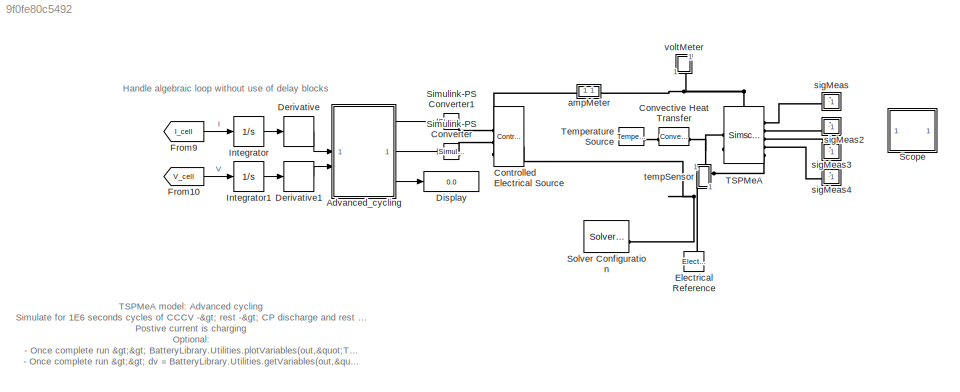
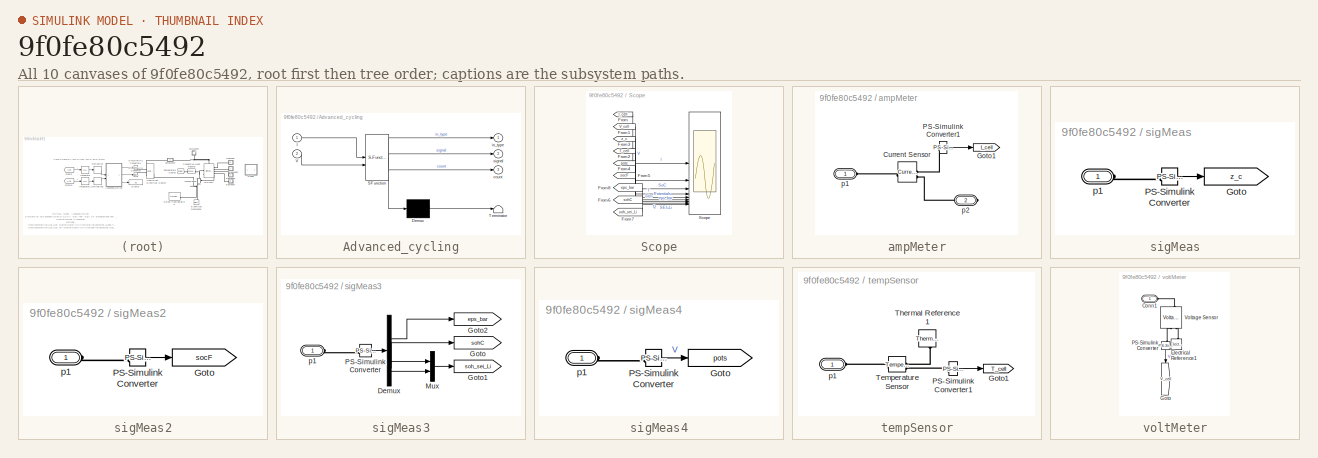
[diagram: thumbnail index - all 10 canvases of the model, root first then tree order]
MODEL slx_9f0fe80c5492
KIND model
CONFIG AbsTol = auto
CONFIG EnableMultiTasking = off
CONFIG FixedStep = 1
CONFIG MaxStep = 5
CONFIG MinStep = auto
CONFIG RelTol = auto
CONFIG SampleTimeConstraint = Unconstrained
CONFIG SolverName = daessc
CONFIG StartTime = 0.0
CONFIG StopTime = 1E6
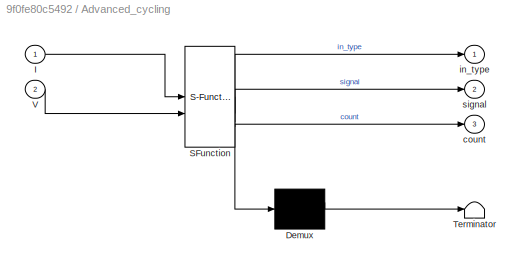
BLOCK [SubSystem] Advanced_cycling
  ErrorFcn = Stateflow.Translate.translate
  PermitHierarchicalResolution = ExplicitOnly
  SFBlockType = Chart
  TreatAsAtomicUnit = on
BLOCK [Demux] Advanced_cycling/ Demux 
  Outputs = 1
BLOCK [S-Function] Advanced_cycling/ SFunction 
  EnableBusSupport = on
  FunctionName = sf_sfun
  PortCounts = [2 4]
  SFcnIsStateOwnerBlock = off
  SFunctionDeploymentMode = off
  Tag = Stateflow S-Function 3
BLOCK [Terminator] Advanced_cycling/ Terminator 
BLOCK [Inport] Advanced_cycling/I
BLOCK [Inport] Advanced_cycling/V
  Port = 2
BLOCK [Outport] Advanced_cycling/count
  Port = 3
BLOCK [Outport] Advanced_cycling/in_type
BLOCK [Outport] Advanced_cycling/signal
  Port = 2
BLOCK [Reference] Controlled Electrical Source  REF=BatteryLibrary_lib/Utilities/Controlled
Electrical Source
  SourceBlock = BatteryLibrary_lib/Utilities/Controlled\nElectrical Source
  SourceType = Controlled\nElectrical Source
BLOCK [Reference] Convective Heat Transfer  REF=fl_lib/Thermal/Thermal Elements/Convective Heat
Transfer
  NameLocation = top
  SourceBlock = fl_lib/Thermal/Thermal Elements/Convective Heat\nTransfer
  SourceType = Convective Heat\nTransfer
BLOCK [Derivative] Derivative
BLOCK [Derivative] Derivative1
BLOCK [Display] Display
  Decimation = 1
BLOCK [Reference] Electrical Reference  REF=fl_lib/Electrical/Electrical Elements/Electrical Reference
  NameLocation = right
  SourceBlock = fl_lib/Electrical/Electrical Elements/Electrical Reference
  SourceType = Electrical Reference
BLOCK [From] From10
  GotoTag = V_cell
  TagVisibility = global
BLOCK [From] From9
  GotoTag = I_cell
  TagVisibility = global
BLOCK [Integrator] Integrator
BLOCK [Integrator] Integrator1
  InitialCondition = 4.1
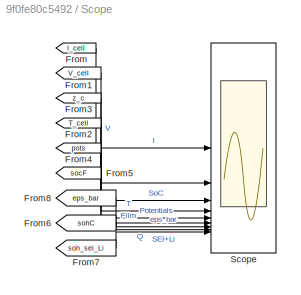
BLOCK [SubSystem] Scope
BLOCK [From] Scope/From
  GotoTag = I_cell
  TagVisibility = global
BLOCK [From] Scope/From1
  GotoTag = V_cell
  TagVisibility = global
BLOCK [From] Scope/From2
  GotoTag = T_cell
  TagVisibility = global
BLOCK [From] Scope/From3
  GotoTag = z_c
  TagVisibility = global
BLOCK [From] Scope/From4
  GotoTag = pots
  TagVisibility = global
BLOCK [From] Scope/From5
  GotoTag = socF
  TagVisibility = global
BLOCK [From] Scope/From6
  GotoTag = sohC
  TagVisibility = global
BLOCK [From] Scope/From7
  GotoTag = soh_sei_Li
  TagVisibility = global
BLOCK [From] Scope/From8
  GotoTag = eps_bar
  TagVisibility = global
BLOCK [Scope] Scope/Scope
  Floating = off
  NumInputPorts = 9
  ScopeSpecificationString = Simulink.scopes.TimeScopeBlockCfg('CurrentConfiguration', extmgr.ConfigurationSet(extmgr.Configuration('Core','General UI',true,'FigureColor',[0 0 0]),extmgr.Configuration('Core','Source UI',true),extmgr.Configuration('Sources','WiredSimulink',true),extmgr.Configuration('Visuals','Time Domain',true,'SerializedDisplays',{struct('MinYLimReal','-2.87921','MaxYLimReal','5.87547','YLabelReal','','MinYL...<+6204ch>
BLOCK [Reference] Simulink-PS Converter  REF=nesl_utility/Simulink-PS
Converter
  SourceBlock = nesl_utility/Simulink-PS\nConverter
  SourceType = Simulink-PS\nConverter
BLOCK [Reference] Simulink-PS Converter1  REF=nesl_utility/Simulink-PS
Converter
  SourceBlock = nesl_utility/Simulink-PS\nConverter
  SourceType = Simulink-PS\nConverter
BLOCK [Reference] Solver Configuration  REF=nesl_utility/Solver
Configuration
  SourceBlock = nesl_utility/Solver\nConfiguration
  SourceType = Solver\nConfiguration
BLOCK [SimscapeComponentBlock] TSPMeA
  Area_p = 1027
  Area_p_conf = compiletime
  Area_p_unit = cm^2
  ClassName = TSPMeA
  Cn = 4.9
  Cn_conf = compiletime
  Cn_unit = A*hr
  ComponentPath = BatteryLibrary.Models.TSPMeA
  ComponentVariantNames = ["TSPMeA"]
  ComponentVariants = ["BatteryLibrary.Models.TSPMeA"]
  CopyFcn = simscape.engine.sli.internal.componentblockcallback(gcbh,'COPY')
  Cp = 110
  Cp_conf = compiletime
  Cp_unit = J/K
  DnRef = 3.3E-14
  DnRef_conf = compiletime
  DnRef_unit = m^2/s
  DpRef = 4E-15
  DpRef_conf = compiletime
  DpRef_unit = m^2/s
  DseiRef = 2E-21
  DseiRef_conf = compiletime
  DseiRef_unit = m^2/s
  Ea_De = 8
  Ea_De_conf = compiletime
  Ea_De_unit = kJ/mol
  Ea_Dn = 8
  Ea_Dn_conf = compiletime
  Ea_Dn_unit = kJ/mol
  Ea_Dp = 8
  Ea_Dp_conf = compiletime
  Ea_Dp_unit = kJ/mol
  Ea_Dsei = 10
  Ea_Dsei_conf = compiletime
  Ea_Dsei_unit = kJ/mol
  Ea_kLi = 2
  Ea_kLi_conf = compiletime
  Ea_kLi_unit = kJ/mol
  Ea_kn = 10
  Ea_kn_conf = compiletime
  Ea_kn_unit = kJ/mol
  Ea_kp = 10
  Ea_kp_conf = compiletime
  Ea_kp_unit = kJ/mol
  Ea_ksei = 50
  Ea_ksei_conf = compiletime
  Ea_ksei_unit = kJ/mol
  Ea_sigmae = 3
  Ea_sigmae_conf = compiletime
  Ea_sigmae_unit = kJ/mol
  Ea_sigman = 3
  Ea_sigman_conf = compiletime
  Ea_sigman_unit = kJ/mol
  Ea_sigmap = 3
  Ea_sigmap_conf = compiletime
  Ea_sigmap_unit = kJ/mol
  Ea_sigmasei = 10
  Ea_sigmasei_conf = compiletime
  Ea_sigmasei_unit = kJ/mol
  InternalSimscapePortConfiguration = {"Bottom":[{"id":"n","label":"-","type":"foundation.electrical.electrical"}],"Left":[{"id":"Hi","label":"H","type":"foundation.thermal.thermal"}],"Right":[{"id":"z","label":"SoC","type":"output"},{"id":"Lf_bar","label":"sohF","type":"output"},{"id":"SoH_Cn","label":"sohC","type":"output"},{"id":"pots","label":"Pots","type":"output"}],"Top":[{"id":"p","label":"+","type":"foundation.electrical.elect...<+9ch>
  Lf0 = 5E-3
  Lf0_conf = compiletime
  Lf0_unit = um
  Ln = 85.2
  Ln_conf = compiletime
  Ln_unit = um
  Lp = 75.6
  Lp_conf = compiletime
  Lp_unit = um
  Ls = 12
  Ls_conf = compiletime
  Ls_unit = um
  MLi = 6.94E-3
  MLi_conf = compiletime
  MLi_unit = kg/mol
  MaskType = TSPMeA
  Msei = 0.162
  Msei_conf = compiletime
  Msei_unit = kg/mol
  PreCopyFcn = simscape.engine.sli.internal.componentblockcallback(gcbh,'PRECOPY')
  PreDeleteFcn = simscape.engine.sli.internal.componentblockcallback(gcbh,'PREDELETE')
  Rn = 5.86
  Rn_conf = compiletime
  Rn_unit = um
  Rp = 5.22
  Rp_conf = compiletime
  Rp_unit = um
  SchemaVersion = 1
  SourceFile = BatteryLibrary.Models.TSPMeA
  T0 = 25
  T0_conf = compiletime
  T0_unit = degC
  Tref = 298
  Tref_conf = compiletime
  Tref_unit = K
  ULi = 0.4
  ULi_conf = compiletime
  ULi_unit = V
  Usei = 0.4
  Usei_conf = compiletime
  Usei_unit = V
  an = 3.84E5
  an_conf = compiletime
  an_unit = 1/m
  ap = 3.82E5
  ap_conf = compiletime
  ap_unit = 1/m
  ce0 = 1000
  ce0_conf = compiletime
  ce0_unit = mol/m^3
  cn_max = 33133
  cn_max_conf = compiletime
  cn_max_unit = mol/m^3
  cp_max = 63104
  cp_max_conf = compiletime
  cp_max_unit = mol/m^3
  csei0 = 4541
  csei0_conf = compiletime
  csei0_unit = mol/m^3
  eps_n0 = 0.3
  eps_n0_conf = compiletime
  eps_n0_unit = 1
  eps_p = 0.335
  eps_p_conf = compiletime
  eps_p_unit = 1
  eps_s = 0.47
  eps_s_conf = compiletime
  eps_s_unit = 1
  kLiRef = 1E-15
  kLiRef_conf = compiletime
  kLiRef_unit = m/s
  knRef = 6.48E-7
  knRef_conf = compiletime
  knRef_unit = A*m^(5/2)/mol^(3/2)
  kpRef = 3.42E-6
  kpRef_conf = compiletime
  kpRef_unit = A*m^(5/2)/mol^(3/2)
  kseiRef = 1E-11
  kseiRef_conf = compiletime
  kseiRef_unit = m/s
  pho_Li = 534
  pho_Li_conf = compiletime
  pho_Li_unit = kg/m^3
  pho_sei = 1690
  pho_sei_conf = compiletime
  pho_sei_unit = kg/m^3
  sigma_eRef = 1.2
  sigma_eRef_conf = compiletime
  sigma_eRef_unit = S/m
  sigma_nRef = 215
  sigma_nRef_conf = compiletime
  sigma_nRef_unit = S/m
  sigma_pRef = 0.18
  sigma_pRef_conf = compiletime
  sigma_pRef_unit = S/m
  sigma_seiRef = 5E-6
  sigma_seiRef_conf = compiletime
  sigma_seiRef_unit = S/m
  sn_max = 0.9014
  sn_max_conf = compiletime
  sn_max_unit = 1
  sn_min = 0.0279
  sn_min_conf = compiletime
  sn_min_unit = 1
  sp_max = 0.9072
  sp_max_conf = compiletime
  sp_max_unit = 1
  sp_min = 0.2567
  sp_min_conf = compiletime
  sp_min_unit = 1
  tr = 0.2594
  tr_conf = compiletime
  tr_unit = 1
  z0 = 0.5
  z0_conf = compiletime
  z0_unit = 1
BLOCK [Reference] Temperature Source  REF=fl_lib/Thermal/Thermal Sources/Temperature Source
  SourceBlock = fl_lib/Thermal/Thermal Sources/Temperature Source
  SourceType = Temperature Source
BLOCK [SubSystem] ampMeter
  ShowPortLabels = none
BLOCK [Reference] ampMeter/Current Sensor  REF=fl_lib/Electrical/Electrical Sensors/Current Sensor
  SourceBlock = fl_lib/Electrical/Electrical Sensors/Current Sensor
  SourceType = Current Sensor
BLOCK [Goto] ampMeter/Goto1
  GotoTag = I_cell
  TagVisibility = global
BLOCK [Reference] ampMeter/PS-Simulink Converter1  REF=nesl_utility/PS-Simulink
Converter
  SourceBlock = nesl_utility/PS-Simulink\nConverter
  SourceType = PS-Simulink\nConverter
BLOCK [PMIOPort] ampMeter/p1
  Side = Left
BLOCK [PMIOPort] ampMeter/p2
  Port = 2
  Side = Right
BLOCK [SubSystem] sigMeas
  ShowPortLabels = none
BLOCK [Goto] sigMeas/Goto
  GotoTag = z_c
  TagVisibility = global
BLOCK [Reference] sigMeas/PS-Simulink Converter  REF=nesl_utility/PS-Simulink
Converter
  SourceBlock = nesl_utility/PS-Simulink\nConverter
  SourceType = PS-Simulink\nConverter
BLOCK [PMIOPort] sigMeas/p1
  Side = Left
BLOCK [SubSystem] sigMeas2
  ShowPortLabels = none
BLOCK [Goto] sigMeas2/Goto
  GotoTag = socF
  TagVisibility = global
BLOCK [Reference] sigMeas2/PS-Simulink Converter  REF=nesl_utility/PS-Simulink
Converter
  SourceBlock = nesl_utility/PS-Simulink\nConverter
  SourceType = PS-Simulink\nConverter
BLOCK [PMIOPort] sigMeas2/p1
  Side = Left
BLOCK [SubSystem] sigMeas3
  ShowPortLabels = none
BLOCK [Demux] sigMeas3/Demux
BLOCK [Goto] sigMeas3/Goto
  GotoTag = sohC
  TagVisibility = global
BLOCK [Goto] sigMeas3/Goto1
  GotoTag = soh_sei_Li
  TagVisibility = global
BLOCK [Goto] sigMeas3/Goto2
  GotoTag = eps_bar
  TagVisibility = global
BLOCK [Mux] sigMeas3/Mux
  DisplayOption = bar
  Inputs = 2
BLOCK [Reference] sigMeas3/PS-Simulink Converter  REF=nesl_utility/PS-Simulink
Converter
  SourceBlock = nesl_utility/PS-Simulink\nConverter
  SourceType = PS-Simulink\nConverter
BLOCK [PMIOPort] sigMeas3/p1
  Side = Left
BLOCK [SubSystem] sigMeas4
  ShowPortLabels = none
BLOCK [Goto] sigMeas4/Goto
  GotoTag = pots
  TagVisibility = global
BLOCK [Reference] sigMeas4/PS-Simulink Converter  REF=nesl_utility/PS-Simulink
Converter
  SourceBlock = nesl_utility/PS-Simulink\nConverter
  SourceType = PS-Simulink\nConverter
BLOCK [PMIOPort] sigMeas4/p1
  Side = Left
BLOCK [SubSystem] tempSensor
  NameLocation = left
  ShowPortLabels = none
BLOCK [Goto] tempSensor/Goto1
  GotoTag = T_cell
  TagVisibility = global
BLOCK [Reference] tempSensor/PS-Simulink Converter1  REF=nesl_utility/PS-Simulink
Converter
  SourceBlock = nesl_utility/PS-Simulink\nConverter
  SourceType = PS-Simulink\nConverter
BLOCK [Reference] tempSensor/Temperature Sensor  REF=fl_lib/Thermal/Thermal Sensors/Temperature Sensor
  SourceBlock = fl_lib/Thermal/Thermal Sensors/Temperature Sensor
  SourceType = Temperature Sensor
BLOCK [Reference] tempSensor/Thermal Reference1  REF=fl_lib/Thermal/Thermal Elements/Thermal Reference
  NameLocation = left
  SourceBlock = fl_lib/Thermal/Thermal Elements/Thermal Reference
  SourceType = Thermal Reference
BLOCK [PMIOPort] tempSensor/p1
  Side = Left
BLOCK [SubSystem] voltMeter
  NameLocation = right
  ShowPortLabels = none
BLOCK [PMIOPort] voltMeter/Conn1
  Side = Left
BLOCK [Reference] voltMeter/Electrical Reference1  REF=fl_lib/Electrical/Electrical Elements/Electrical Reference
  NameLocation = right
  SourceBlock = fl_lib/Electrical/Electrical Elements/Electrical Reference
  SourceType = Electrical Reference
BLOCK [Goto] voltMeter/Goto
  GotoTag = V_cell
  NameLocation = left
  TagVisibility = global
BLOCK [Reference] voltMeter/PS-Simulink Converter  REF=nesl_utility/PS-Simulink
Converter
  NameLocation = left
  SourceBlock = nesl_utility/PS-Simulink\nConverter
  SourceType = PS-Simulink\nConverter
BLOCK [Reference] voltMeter/Voltage Sensor  REF=fl_lib/Electrical/Electrical Sensors/Voltage Sensor
  NameLocation = right
  SourceBlock = fl_lib/Electrical/Electrical Sensors/Voltage Sensor
  SourceType = Voltage Sensor
ANNOTATION (root): TSPMeA model: Advanced cycling Simulate for 1E6 seconds cycles of CCCV -> rest -> CP discharge and rest at 25 degC Postive current is charging Optional: - Once complete run >> BatteryLibrary.Utilities.plotVariables(out,"TSPMeA") on the command line or, even better, on a live script to see summary results - Once complete run >> dv = BatteryLibrary.Utilities.getVariables(out,"TSPMeA") on the command...<+47ch>
ANNOTATION (root): Handle algebraic loop without use of delay blocks
LINE Advanced_cycling:1 -> Simulink-PS Converter1:1
LINE Advanced_cycling:2 -> Simulink-PS Converter:1
LINE Advanced_cycling:3 -> Display:1
LINE Derivative1:1 -> Advanced_cycling:2
LINE Derivative:1 -> Advanced_cycling:1
LINE From10:1 -> Integrator1:1
LINE From9:1 -> Integrator:1
LINE Integrator1:1 -> Derivative1:1
LINE Integrator:1 -> Derivative:1
LINE Scope/From1:1 -> Scope/Scope:2
LINE Scope/From2:1 -> Scope/Scope:4
LINE Scope/From3:1 -> Scope/Scope:3
LINE Scope/From4:1 -> Scope/Scope:5
LINE Scope/From5:1 -> Scope/Scope:6
LINE Scope/From6:1 -> Scope/Scope:8
LINE Scope/From7:1 -> Scope/Scope:9
LINE Scope/From8:1 -> Scope/Scope:7
LINE Scope/From:1 -> Scope/Scope:1
LINE ampMeter/PS-Simulink Converter1:1 -> ampMeter/Goto1:1
LINE sigMeas/PS-Simulink Converter:1 -> sigMeas/Goto:1
LINE sigMeas2/PS-Simulink Converter:1 -> sigMeas2/Goto:1
LINE sigMeas3/Demux:1 -> sigMeas3/Goto2:1
LINE sigMeas3/Demux:2 -> sigMeas3/Goto:1
LINE sigMeas3/Demux:3 -> sigMeas3/Mux:1
LINE sigMeas3/Demux:4 -> sigMeas3/Mux:2
LINE sigMeas3/Mux:1 -> sigMeas3/Goto1:1
LINE sigMeas3/PS-Simulink Converter:1 -> sigMeas3/Demux:1
LINE sigMeas4/PS-Simulink Converter:1 -> sigMeas4/Goto:1
LINE tempSensor/PS-Simulink Converter1:1 -> tempSensor/Goto1:1
LINE voltMeter/PS-Simulink Converter:1 -> voltMeter/Goto:1
PLINE Controlled Electrical Source:LConn1 -- Simulink-PS Converter1:RConn1
PLINE Controlled Electrical Source:LConn2 -- Simulink-PS Converter:RConn1
PLINE Controlled Electrical Source:LConn3 -- ampMeter:LConn1
PNET net1: Controlled Electrical Source:RConn1 -- Electrical Reference:LConn1 -- Solver Configuration:RConn1 -- TSPMeA:RConn5
PNET net2: Convective Heat Transfer:LConn1 -- TSPMeA:LConn1 -- tempSensor:LConn1
PLINE Convective Heat Transfer:RConn1 -- Temperature Source:LConn1
PNET net3: TSPMeA:LConn2 -- ampMeter:RConn1 -- voltMeter:LConn1
PLINE TSPMeA:RConn1 -- sigMeas:LConn1
PLINE TSPMeA:RConn2 -- sigMeas2:LConn1
PLINE TSPMeA:RConn3 -- sigMeas3:LConn1
PLINE TSPMeA:RConn4 -- sigMeas4:LConn1
PLINE ampMeter/Current Sensor:LConn1 -- ampMeter/p1:RConn1
PLINE ampMeter/Current Sensor:RConn1 -- ampMeter/PS-Simulink Converter1:LConn1
PLINE ampMeter/Current Sensor:RConn2 -- ampMeter/p2:RConn1
PLINE sigMeas/PS-Simulink Converter:LConn1 -- sigMeas/p1:RConn1
PLINE sigMeas2/PS-Simulink Converter:LConn1 -- sigMeas2/p1:RConn1
PLINE sigMeas3/PS-Simulink Converter:LConn1 -- sigMeas3/p1:RConn1
PLINE sigMeas4/PS-Simulink Converter:LConn1 -- sigMeas4/p1:RConn1
PLINE tempSensor/PS-Simulink Converter1:LConn1 -- tempSensor/Temperature Sensor:RConn2
PLINE tempSensor/Temperature Sensor:LConn1 -- tempSensor/p1:RConn1
PLINE tempSensor/Temperature Sensor:RConn1 -- tempSensor/Thermal Reference1:LConn1
PLINE voltMeter/Conn1:RConn1 -- voltMeter/Voltage Sensor:LConn1
PLINE voltMeter/Electrical Reference1:LConn1 -- voltMeter/Voltage Sensor:RConn2
PLINE voltMeter/PS-Simulink Converter:LConn1 -- voltMeter/Voltage Sensor:RConn1
note: PNET lines group multi-terminal physical nets as a canonical sorted terminal list (undirected conserving connections); 2-terminal nets keep the pairwise PLINE form
CHART Advanced_cycling states=7 transitions=8
  STATE_LABEL 'Power_Cycling_Profile'
  STATE_LABEL 'Rest\nin_type = 0;\nsignal = 0;\n'
  STATE_LABEL 'Discharge_CP\nin_type = 2;\nsignal = -5;\n'
  STATE_LABEL 'Rest1\nin_type = 0;\nsignal = 0;\n'
  STATE_LABEL 'Charge_CC\nin_type = 0;\nsignal = 5'
  STATE_LABEL 'Charge_CV\nin_type = 1;\nsignal = 4.2'
  STATE_LABEL 'Rest2\nin_type = 0;\nsignal = 0;\n'
  STATE_LABEL '{count=0}'
  STATE_LABEL '[after(10,sec)]'
  STATE_LABEL '[after(3600,sec)]{count = count + 1}'
  STATE_LABEL '[V<=2.5]'
  STATE_LABEL '[after(3600,sec)]'
  STATE_LABEL '[V>=4.2]'
  STATE_LABEL '[I<=5/10]'
  STATE_LABEL 'Rest\nin_type = 0;\nsignal = 0;\n'
  STATE_LABEL 'Discharge_CP\nin_type = 2;\nsignal = -5;\n'
  STATE_LABEL 'Rest1\nin_type = 0;\nsignal = 0;\n'
  STATE_LABEL 'Charge_CC\nin_type = 0;\nsignal = 5'
  STATE_LABEL 'Charge_CV\nin_type = 1;\nsignal = 4.2'
  STATE_LABEL 'Rest2\nin_type = 0;\nsignal = 0;\n'
CHART  states=0 transitions=0
